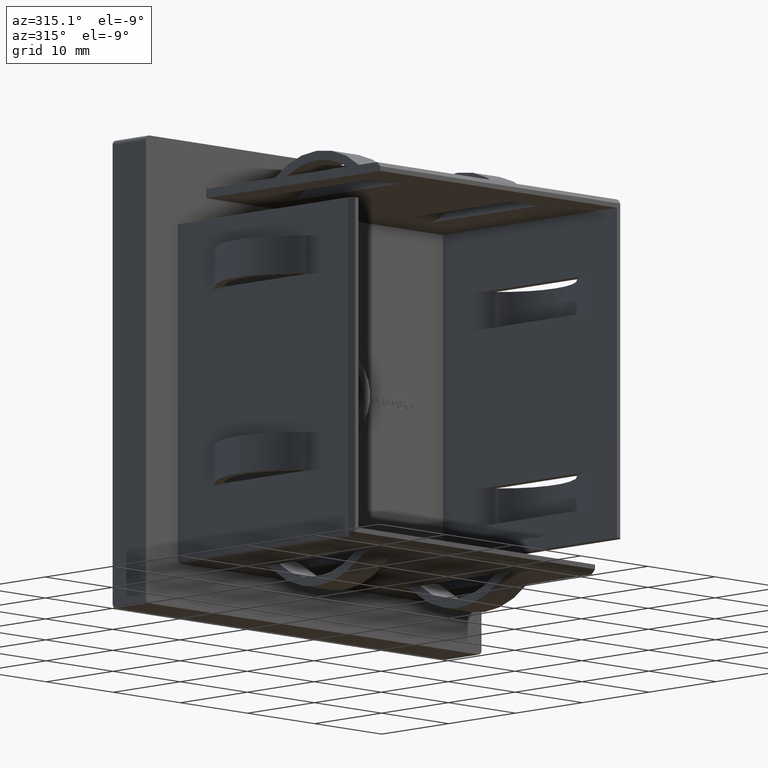
[diagram: clean part render]
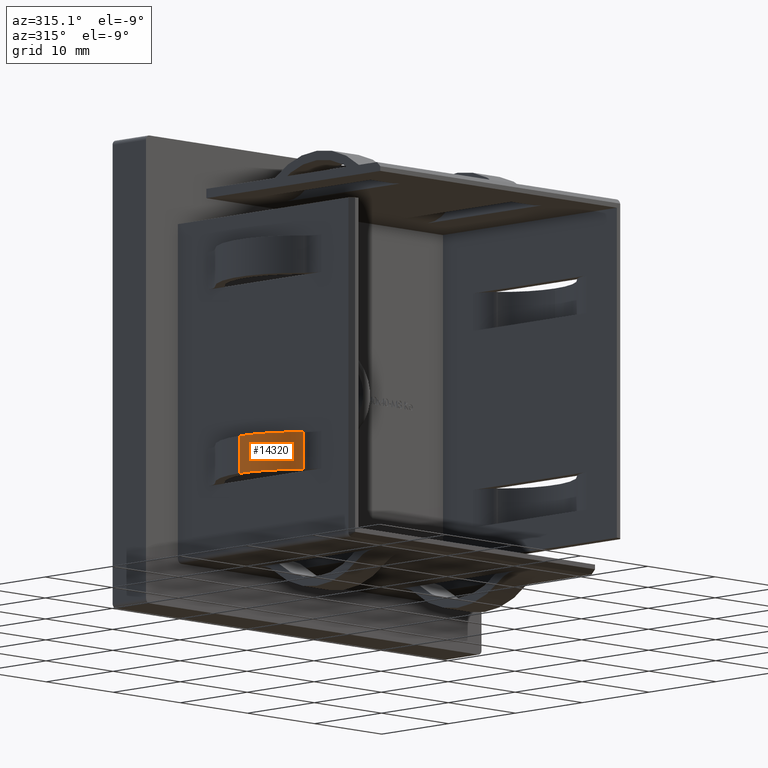
[diagram: same view with one face highlighted and labeled with its STEP entity id]
A machine part, auxiliary view. The second image highlights one B-rep face of the part: STEP entity #14320.
In plain terms, the highlighted cylindrical surface (partial cylindrical patch) has radius 9 mm, axis along (0, -0, -1).
Its self-contained STEP definition (entity closure, byte-faithful):
#687 = DIRECTION ( 'NONE',  ( -1.000000000000000000, 0.0000000000000000000, -1.927470528863119300E-016 ) ) ;
#960 = DIRECTION ( 'NONE',  ( 2.154935995002245100E-016, -0.0000000000000000000, -1.000000000000000000 ) ) ;
#1127 = DIRECTION ( 'NONE',  ( -1.000000000000000000, 0.0000000000000000000, -1.927470528863119300E-016 ) ) ;
#1629 = FACE_OUTER_BOUND ( 'NONE', #12350, .T. ) ;
#2484 = LINE ( 'NONE', #18165, #13529 ) ;
#2506 = CARTESIAN_POINT ( 'NONE',  ( -21.06734250543086200, -19.64735698769007000, -12.50000000000000500 ) ) ;
#2907 = LINE ( 'NONE', #12551, #4267 ) ;
#3338 = ORIENTED_EDGE ( 'NONE', *, *, #3698, .F. ) ;
#3698 = EDGE_CURVE ( 'NONE', #8311, #11688, #2484, .T. ) ;
#3818 = CIRCLE ( 'NONE', #17286, 8.999999999999998200 ) ;
#4241 = DIRECTION ( 'NONE',  ( -1.000000000000000000, 0.0000000000000000000, -1.927470528863119300E-016 ) ) ;
#4267 = VECTOR ( 'NONE', #6831, 1000.000000000000000 ) ;
#4775 = CYLINDRICAL_SURFACE ( 'NONE', #4876, 8.999999999999998200 ) ;
#4803 = DIRECTION ( 'NONE',  ( 2.154935995002245100E-016, -0.0000000000000000000, -1.000000000000000000 ) ) ;
#4876 = AXIS2_PLACEMENT_3D ( 'NONE', #10664, #4803, #687 ) ;
#6831 = DIRECTION ( 'NONE',  ( 2.154935995002245100E-016, -0.0000000000000000000, -1.000000000000000000 ) ) ;
#6915 = CARTESIAN_POINT ( 'NONE',  ( -15.00000000000000400, -13.00000000000000500, -12.50000000000000400 ) ) ;
#7727 = ORIENTED_EDGE ( 'NONE', *, *, #15907, .T. ) ;
#8180 = CIRCLE ( 'NONE', #11743, 8.999999999999998200 ) ;
#8311 = VERTEX_POINT ( 'NONE', #10076 ) ;
#8602 = DIRECTION ( 'NONE',  ( -2.154935995002244900E-016, 0.0000000000000000000, 1.000000000000000000 ) ) ;
#9414 = EDGE_CURVE ( 'NONE', #11698, #11688, #3818, .T. ) ;
#10076 = CARTESIAN_POINT ( 'NONE',  ( -21.06734250543086200, -19.64735698769007000, -8.500000000000005300 ) ) ;
#10664 = CARTESIAN_POINT ( 'NONE',  ( -15.00000000000000400, -13.00000000000000500, -8.500000000000003600 ) ) ;
#11688 = VERTEX_POINT ( 'NONE', #2506 ) ;
#11698 = VERTEX_POINT ( 'NONE', #16717 ) ;
#11743 = AXIS2_PLACEMENT_3D ( 'NONE', #12726, #14234, #1127 ) ;
#12350 = EDGE_LOOP ( 'NONE', ( #14713, #7727, #13207, #3338 ) ) ;
#12551 = CARTESIAN_POINT ( 'NONE',  ( -24.00000000000000000, -13.00000000000000500, -8.500000000000005300 ) ) ;
#12612 = VERTEX_POINT ( 'NONE', #16675 ) ;
#12726 = CARTESIAN_POINT ( 'NONE',  ( -15.00000000000000400, -13.00000000000000500, -8.500000000000003600 ) ) ;
#13207 = ORIENTED_EDGE ( 'NONE', *, *, #9414, .T. ) ;
#13529 = VECTOR ( 'NONE', #960, 1000.000000000000000 ) ;
#13721 = EDGE_CURVE ( 'NONE', #12612, #8311, #8180, .T. ) ;
#14234 = DIRECTION ( 'NONE',  ( -2.154935995002244900E-016, 0.0000000000000000000, 1.000000000000000000 ) ) ;
#14320 = ADVANCED_FACE ( 'NONE', ( #1629 ), #4775, .T. ) ;
#14713 = ORIENTED_EDGE ( 'NONE', *, *, #13721, .F. ) ;
#15907 = EDGE_CURVE ( 'NONE', #12612, #11698, #2907, .T. ) ;
#16675 = CARTESIAN_POINT ( 'NONE',  ( -24.00000000000000000, -13.00000000000000500, -8.500000000000005300 ) ) ;
#16717 = CARTESIAN_POINT ( 'NONE',  ( -24.00000000000000000, -13.00000000000000500, -12.50000000000000500 ) ) ;
#17286 = AXIS2_PLACEMENT_3D ( 'NONE', #6915, #8602, #4241 ) ;
#18165 = CARTESIAN_POINT ( 'NONE',  ( -21.06734250543086200, -19.64735698769007000, -8.500000000000005300 ) ) ;